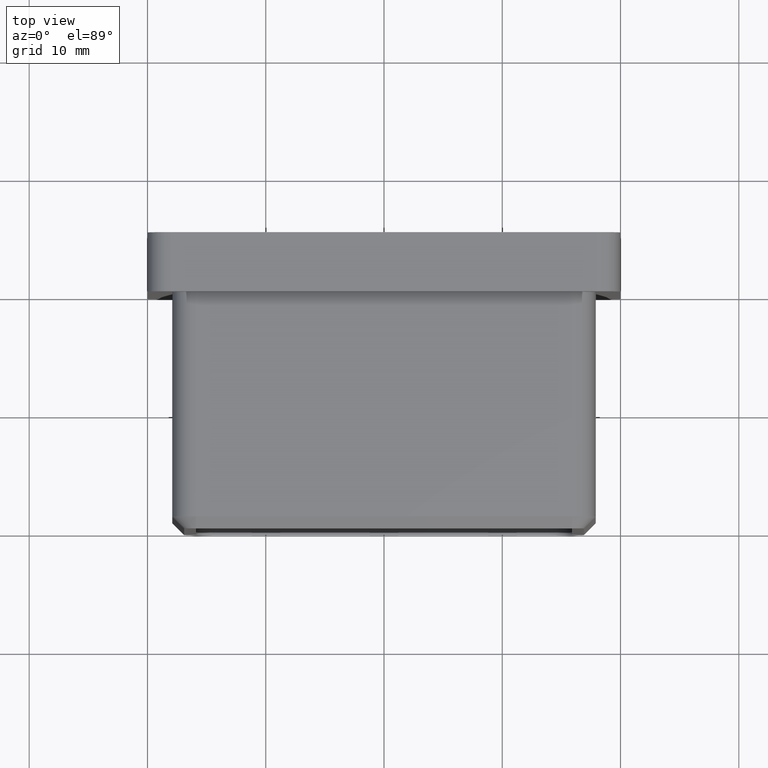
[diagram: clean part render]
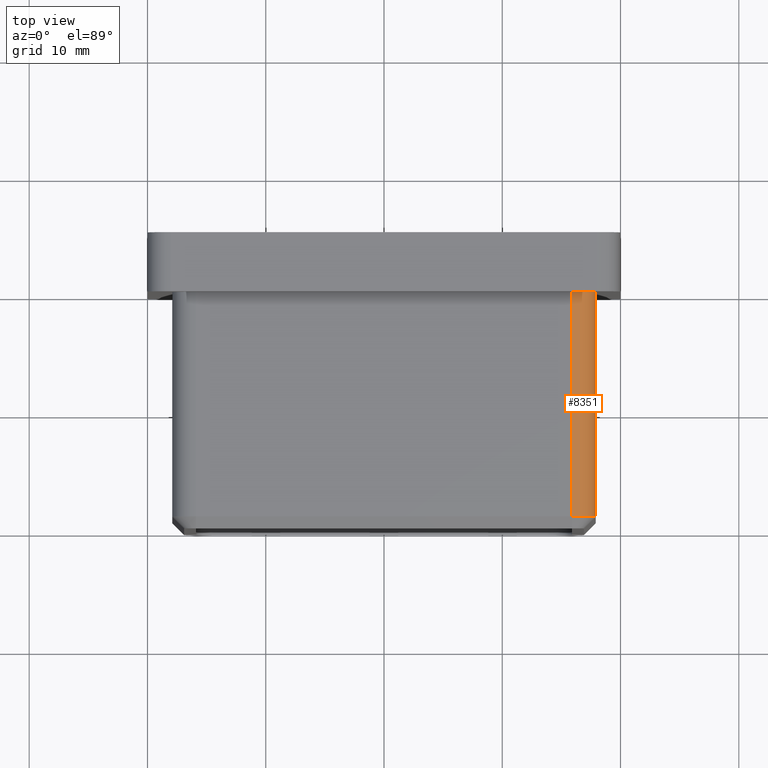
[diagram: same view with one face highlighted and labeled with its STEP entity id]
A machine part, top view. The second image highlights one B-rep face of the part: STEP entity #8351.
In plain terms, the highlighted cylindrical surface (edge-blend (fillet) strip) has radius 2 mm, axis along (0, 1, 0).
Its self-contained STEP definition (entity closure, byte-faithful):
#105 = ORIENTED_EDGE ( 'NONE', *, *, #11952, .F. ) ;
#349 = CARTESIAN_POINT ( 'NONE',  ( 15.90000000000000000, 0.0000000000000000000, 15.89999999999999700 ) ) ;
#421 = VERTEX_POINT ( 'NONE', #13328 ) ;
#1269 = DIRECTION ( 'NONE',  ( 0.0000000000000000000, 0.0000000000000000000, 1.000000000000000000 ) ) ;
#1284 = LINE ( 'NONE', #8730, #6635 ) ;
#2041 = CARTESIAN_POINT ( 'NONE',  ( 17.89999999999999500, -18.99999999999999300, 15.89999999999999700 ) ) ;
#2584 = ORIENTED_EDGE ( 'NONE', *, *, #15572, .F. ) ;
#2848 = ORIENTED_EDGE ( 'NONE', *, *, #14443, .T. ) ;
#3984 = CARTESIAN_POINT ( 'NONE',  ( 15.90000000000000000, -20.00000000000000000, 17.89999999999999500 ) ) ;
#4073 = AXIS2_PLACEMENT_3D ( 'NONE', #349, #14822, #14762 ) ;
#4606 = LINE ( 'NONE', #3984, #9700 ) ;
#5612 = DIRECTION ( 'NONE',  ( 0.0000000000000000000, 0.0000000000000000000, -1.000000000000000000 ) ) ;
#5672 = CARTESIAN_POINT ( 'NONE',  ( 15.90000000000000000, -18.99999999999999300, 15.89999999999999700 ) ) ;
#6067 = ORIENTED_EDGE ( 'NONE', *, *, #15369, .F. ) ;
#6635 = VECTOR ( 'NONE', #11539, 1000.000000000000000 ) ;
#6977 = DIRECTION ( 'NONE',  ( 0.0000000000000000000, 1.000000000000000000, 0.0000000000000000000 ) ) ;
#7463 = VERTEX_POINT ( 'NONE', #8354 ) ;
#7833 = CARTESIAN_POINT ( 'NONE',  ( 15.90000000000000000, 0.0000000000000000000, 17.89999999999999500 ) ) ;
#8351 = ADVANCED_FACE ( 'NONE', ( #13053 ), #15505, .T. ) ;
#8354 = CARTESIAN_POINT ( 'NONE',  ( 17.89999999999999500, 0.0000000000000000000, 15.89999999999999700 ) ) ;
#8405 = VERTEX_POINT ( 'NONE', #7833 ) ;
#8730 = CARTESIAN_POINT ( 'NONE',  ( 17.89999999999999500, -20.00000000000000000, 15.89999999999999700 ) ) ;
#9700 = VECTOR ( 'NONE', #15792, 1000.000000000000000 ) ;
#11527 = CIRCLE ( 'NONE', #12783, 2.000000000000000000 ) ;
#11539 = DIRECTION ( 'NONE',  ( -0.0000000000000000000, -1.000000000000000000, -0.0000000000000000000 ) ) ;
#11952 = EDGE_CURVE ( 'NONE', #8405, #7463, #13493, .T. ) ;
#12783 = AXIS2_PLACEMENT_3D ( 'NONE', #5672, #6977, #5612 ) ;
#13053 = FACE_OUTER_BOUND ( 'NONE', #15170, .T. ) ;
#13328 = CARTESIAN_POINT ( 'NONE',  ( 15.90000000000000000, -18.99999999999999300, 17.89999999999999500 ) ) ;
#13493 = CIRCLE ( 'NONE', #4073, 2.000000000000001800 ) ;
#13648 = AXIS2_PLACEMENT_3D ( 'NONE', #15517, #14469, #1269 ) ;
#14443 = EDGE_CURVE ( 'NONE', #421, #15153, #11527, .T. ) ;
#14469 = DIRECTION ( 'NONE',  ( 0.0000000000000000000, 1.000000000000000000, 0.0000000000000000000 ) ) ;
#14762 = DIRECTION ( 'NONE',  ( 0.0000000000000000000, 0.0000000000000000000, 1.000000000000000000 ) ) ;
#14822 = DIRECTION ( 'NONE',  ( 0.0000000000000000000, 1.000000000000000000, 0.0000000000000000000 ) ) ;
#15153 = VERTEX_POINT ( 'NONE', #2041 ) ;
#15170 = EDGE_LOOP ( 'NONE', ( #6067, #2848, #2584, #105 ) ) ;
#15369 = EDGE_CURVE ( 'NONE', #421, #8405, #4606, .T. ) ;
#15505 = CYLINDRICAL_SURFACE ( 'NONE', #13648, 2.000000000000001800 ) ;
#15517 = CARTESIAN_POINT ( 'NONE',  ( 15.90000000000000000, -20.00000000000000000, 15.89999999999999700 ) ) ;
#15572 = EDGE_CURVE ( 'NONE', #7463, #15153, #1284, .T. ) ;
#15792 = DIRECTION ( 'NONE',  ( 0.0000000000000000000, 1.000000000000000000, 0.0000000000000000000 ) ) ;